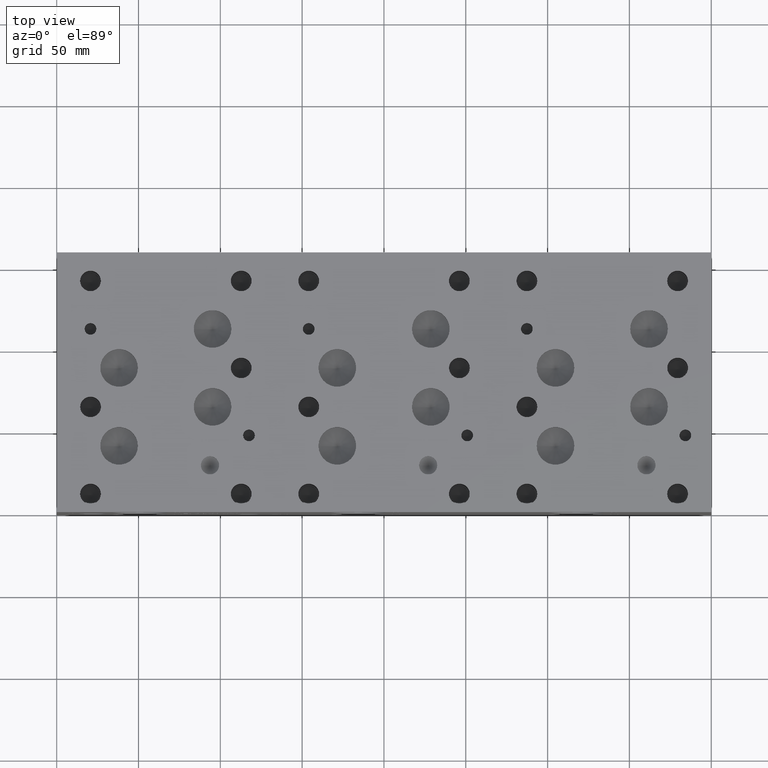
[diagram: clean part render]
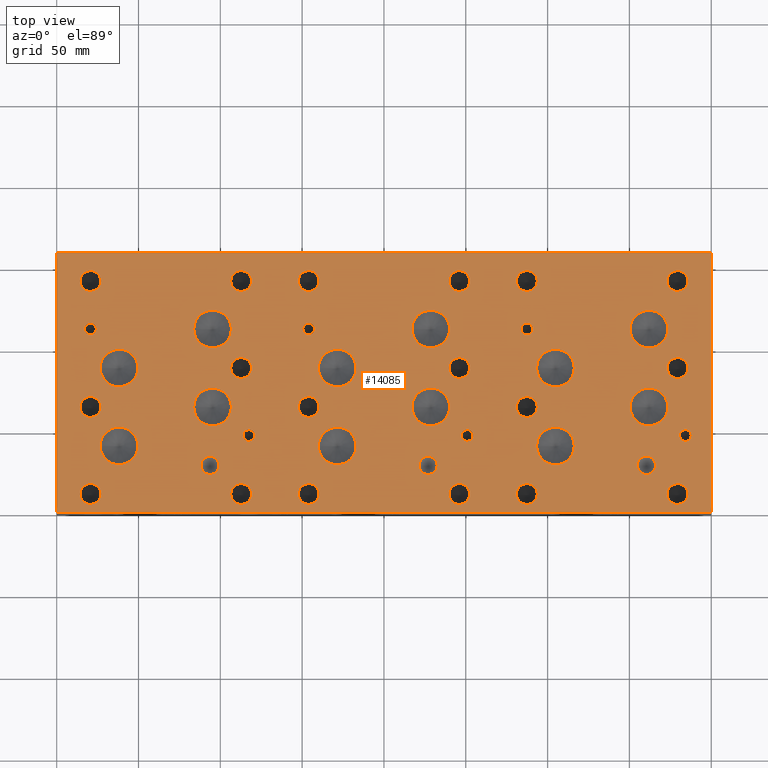
[diagram: same view with one face highlighted and labeled with its STEP entity id]
A machine part, top view. The second image highlights one B-rep face of the part: STEP entity #14085.
In plain terms, the highlighted planar face has unit normal (0, 0, 1).
Its self-contained STEP definition (entity closure, byte-faithful):
#384=CIRCLE('',#14501,5.5626);
#385=CIRCLE('',#14502,5.5626);
#388=CIRCLE('',#14507,5.5626);
#389=CIRCLE('',#14508,5.5626);
#479=CIRCLE('',#14668,5.55625);
#480=CIRCLE('',#14669,5.55625);
#483=CIRCLE('',#14674,11.50874);
#484=CIRCLE('',#14675,11.50874);
#487=CIRCLE('',#14680,11.5062);
#488=CIRCLE('',#14681,11.5062);
#491=CIRCLE('',#14686,11.5062);
#492=CIRCLE('',#14687,11.5062);
#495=CIRCLE('',#14692,11.5062);
#496=CIRCLE('',#14693,11.5062);
#499=CIRCLE('',#14698,11.5062);
#500=CIRCLE('',#14699,11.5062);
#503=CIRCLE('',#14704,11.5062);
#504=CIRCLE('',#14705,11.5062);
#507=CIRCLE('',#14710,11.5062);
#508=CIRCLE('',#14711,11.5062);
#511=CIRCLE('',#14716,11.5062);
#512=CIRCLE('',#14717,11.5062);
#515=CIRCLE('',#14722,11.5062);
#516=CIRCLE('',#14723,11.5062);
#519=CIRCLE('',#14728,11.5062);
#520=CIRCLE('',#14729,11.5062);
#523=CIRCLE('',#14734,11.5062);
#524=CIRCLE('',#14735,11.5062);
#527=CIRCLE('',#14740,11.5062);
#528=CIRCLE('',#14741,11.5062);
#531=CIRCLE('',#14746,3.5687);
#532=CIRCLE('',#14747,3.5687);
#535=CIRCLE('',#14752,3.5687);
#536=CIRCLE('',#14753,3.5687);
#539=CIRCLE('',#14758,3.5687);
#540=CIRCLE('',#14759,3.5687);
#543=CIRCLE('',#14764,3.5687);
#544=CIRCLE('',#14765,3.5687);
#547=CIRCLE('',#14770,3.5687);
#548=CIRCLE('',#14771,3.5687);
#551=CIRCLE('',#14776,3.5687);
#552=CIRCLE('',#14777,3.5687);
#558=CIRCLE('',#14786,6.35);
#559=CIRCLE('',#14787,6.35);
#565=CIRCLE('',#14797,6.35);
#566=CIRCLE('',#14798,6.35);
#572=CIRCLE('',#14808,6.35);
#573=CIRCLE('',#14809,6.35);
#579=CIRCLE('',#14819,6.35);
#580=CIRCLE('',#14820,6.35);
#586=CIRCLE('',#14830,6.35);
#587=CIRCLE('',#14831,6.35);
#593=CIRCLE('',#14841,6.35);
#594=CIRCLE('',#14842,6.35);
#600=CIRCLE('',#14852,6.35);
#601=CIRCLE('',#14853,6.35);
#607=CIRCLE('',#14863,6.35);
#608=CIRCLE('',#14864,6.35);
#614=CIRCLE('',#14874,6.35);
#615=CIRCLE('',#14875,6.35);
#621=CIRCLE('',#14885,6.35);
#622=CIRCLE('',#14886,6.35);
#628=CIRCLE('',#14896,6.35);
#629=CIRCLE('',#14897,6.35);
#635=CIRCLE('',#14907,6.35);
#636=CIRCLE('',#14908,6.35);
#642=CIRCLE('',#14918,6.35);
#643=CIRCLE('',#14919,6.35);
#649=CIRCLE('',#14929,6.35);
#650=CIRCLE('',#14930,6.35);
#656=CIRCLE('',#14940,6.35);
#657=CIRCLE('',#14941,6.35);
#663=CIRCLE('',#14951,6.35);
#664=CIRCLE('',#14952,6.35);
#670=CIRCLE('',#14962,6.35);
#671=CIRCLE('',#14963,6.35);
#677=CIRCLE('',#14973,6.35);
#678=CIRCLE('',#14974,6.35);
#1140=FACE_BOUND('',#2733,.T.);
#1141=FACE_BOUND('',#2734,.T.);
#1142=FACE_BOUND('',#2735,.T.);
#1143=FACE_BOUND('',#2736,.T.);
#1144=FACE_BOUND('',#2737,.T.);
#1145=FACE_BOUND('',#2738,.T.);
#1146=FACE_BOUND('',#2739,.T.);
#1147=FACE_BOUND('',#2740,.T.);
#1148=FACE_BOUND('',#2741,.T.);
#1149=FACE_BOUND('',#2742,.T.);
#1150=FACE_BOUND('',#2743,.T.);
#1151=FACE_BOUND('',#2744,.T.);
#1152=FACE_BOUND('',#2745,.T.);
#1153=FACE_BOUND('',#2746,.T.);
#1154=FACE_BOUND('',#2747,.T.);
#1155=FACE_BOUND('',#2748,.T.);
#1156=FACE_BOUND('',#2749,.T.);
#1157=FACE_BOUND('',#2750,.T.);
#1158=FACE_BOUND('',#2751,.T.);
#1159=FACE_BOUND('',#2752,.T.);
#1160=FACE_BOUND('',#2753,.T.);
#1161=FACE_BOUND('',#2754,.T.);
#1162=FACE_BOUND('',#2755,.T.);
#1163=FACE_BOUND('',#2756,.T.);
#1164=FACE_BOUND('',#2757,.T.);
#1165=FACE_BOUND('',#2758,.T.);
#1166=FACE_BOUND('',#2759,.T.);
#1167=FACE_BOUND('',#2760,.T.);
#1168=FACE_BOUND('',#2761,.T.);
#1169=FACE_BOUND('',#2762,.T.);
#1170=FACE_BOUND('',#2763,.T.);
#1171=FACE_BOUND('',#2764,.T.);
#1172=FACE_BOUND('',#2765,.T.);
#1173=FACE_BOUND('',#2766,.T.);
#1174=FACE_BOUND('',#2767,.T.);
#1175=FACE_BOUND('',#2768,.T.);
#1176=FACE_BOUND('',#2769,.T.);
#1177=FACE_BOUND('',#2770,.T.);
#1178=FACE_BOUND('',#2771,.T.);
#1903=FACE_OUTER_BOUND('',#2732,.T.);
#2732=EDGE_LOOP('',(#12367,#12368,#12369,#12370));
#2733=EDGE_LOOP('',(#12371,#12372));
#2734=EDGE_LOOP('',(#12373,#12374));
#2735=EDGE_LOOP('',(#12375,#12376));
#2736=EDGE_LOOP('',(#12377,#12378));
#2737=EDGE_LOOP('',(#12379,#12380));
#2738=EDGE_LOOP('',(#12381,#12382));
#2739=EDGE_LOOP('',(#12383,#12384));
#2740=EDGE_LOOP('',(#12385,#12386));
#2741=EDGE_LOOP('',(#12387,#12388));
#2742=EDGE_LOOP('',(#12389,#12390));
#2743=EDGE_LOOP('',(#12391,#12392));
#2744=EDGE_LOOP('',(#12393,#12394));
#2745=EDGE_LOOP('',(#12395,#12396));
#2746=EDGE_LOOP('',(#12397,#12398));
#2747=EDGE_LOOP('',(#12399,#12400));
#2748=EDGE_LOOP('',(#12401,#12402));
#2749=EDGE_LOOP('',(#12403,#12404));
#2750=EDGE_LOOP('',(#12405,#12406));
#2751=EDGE_LOOP('',(#12407,#12408));
#2752=EDGE_LOOP('',(#12409,#12410));
#2753=EDGE_LOOP('',(#12411,#12412));
#2754=EDGE_LOOP('',(#12413,#12414));
#2755=EDGE_LOOP('',(#12415,#12416));
#2756=EDGE_LOOP('',(#12417,#12418));
#2757=EDGE_LOOP('',(#12419,#12420));
#2758=EDGE_LOOP('',(#12421,#12422));
#2759=EDGE_LOOP('',(#12423,#12424));
#2760=EDGE_LOOP('',(#12425,#12426));
#2761=EDGE_LOOP('',(#12427,#12428));
#2762=EDGE_LOOP('',(#12429,#12430));
#2763=EDGE_LOOP('',(#12431,#12432));
#2764=EDGE_LOOP('',(#12433,#12434));
#2765=EDGE_LOOP('',(#12435,#12436));
#2766=EDGE_LOOP('',(#12437,#12438));
#2767=EDGE_LOOP('',(#12439,#12440));
#2768=EDGE_LOOP('',(#12441,#12442));
#2769=EDGE_LOOP('',(#12443,#12444));
#2770=EDGE_LOOP('',(#12445,#12446));
#2771=EDGE_LOOP('',(#12447,#12448));
#2808=LINE('',#18070,#4057);
#3701=LINE('',#22626,#4950);
#3759=LINE('',#22897,#5008);
#4021=LINE('',#24344,#5270);
#4057=VECTOR('',#15045,10.);
#4950=VECTOR('',#16526,10.);
#5008=VECTOR('',#16638,10.);
#5270=VECTOR('',#17986,10.);
#5295=VERTEX_POINT('',#18067);
#5296=VERTEX_POINT('',#18069);
#6129=VERTEX_POINT('',#22624);
#6187=VERTEX_POINT('',#22896);
#6282=VERTEX_POINT('',#23370);
#6283=VERTEX_POINT('',#23371);
#6287=VERTEX_POINT('',#23383);
#6288=VERTEX_POINT('',#23384);
#6394=VERTEX_POINT('',#23706);
#6395=VERTEX_POINT('',#23707);
#6399=VERTEX_POINT('',#23719);
#6400=VERTEX_POINT('',#23720);
#6404=VERTEX_POINT('',#23732);
#6405=VERTEX_POINT('',#23733);
#6409=VERTEX_POINT('',#23745);
#6410=VERTEX_POINT('',#23746);
#6414=VERTEX_POINT('',#23758);
#6415=VERTEX_POINT('',#23759);
#6419=VERTEX_POINT('',#23771);
#6420=VERTEX_POINT('',#23772);
#6424=VERTEX_POINT('',#23784);
#6425=VERTEX_POINT('',#23785);
#6429=VERTEX_POINT('',#23797);
#6430=VERTEX_POINT('',#23798);
#6434=VERTEX_POINT('',#23810);
#6435=VERTEX_POINT('',#23811);
#6439=VERTEX_POINT('',#23823);
#6440=VERTEX_POINT('',#23824);
#6444=VERTEX_POINT('',#23836);
#6445=VERTEX_POINT('',#23837);
#6449=VERTEX_POINT('',#23849);
#6450=VERTEX_POINT('',#23850);
#6454=VERTEX_POINT('',#23862);
#6455=VERTEX_POINT('',#23863);
#6459=VERTEX_POINT('',#23875);
#6460=VERTEX_POINT('',#23876);
#6464=VERTEX_POINT('',#23888);
#6465=VERTEX_POINT('',#23889);
#6469=VERTEX_POINT('',#23901);
#6470=VERTEX_POINT('',#23902);
#6474=VERTEX_POINT('',#23914);
#6475=VERTEX_POINT('',#23915);
#6479=VERTEX_POINT('',#23927);
#6480=VERTEX_POINT('',#23928);
#6484=VERTEX_POINT('',#23940);
#6485=VERTEX_POINT('',#23941);
#6492=VERTEX_POINT('',#23960);
#6493=VERTEX_POINT('',#23961);
#6500=VERTEX_POINT('',#23982);
#6501=VERTEX_POINT('',#23983);
#6508=VERTEX_POINT('',#24004);
#6509=VERTEX_POINT('',#24005);
#6516=VERTEX_POINT('',#24026);
#6517=VERTEX_POINT('',#24027);
#6524=VERTEX_POINT('',#24048);
#6525=VERTEX_POINT('',#24049);
#6532=VERTEX_POINT('',#24070);
#6533=VERTEX_POINT('',#24071);
#6540=VERTEX_POINT('',#24092);
#6541=VERTEX_POINT('',#24093);
#6548=VERTEX_POINT('',#24114);
#6549=VERTEX_POINT('',#24115);
#6556=VERTEX_POINT('',#24136);
#6557=VERTEX_POINT('',#24137);
#6564=VERTEX_POINT('',#24158);
#6565=VERTEX_POINT('',#24159);
#6572=VERTEX_POINT('',#24180);
#6573=VERTEX_POINT('',#24181);
#6580=VERTEX_POINT('',#24202);
#6581=VERTEX_POINT('',#24203);
#6588=VERTEX_POINT('',#24224);
#6589=VERTEX_POINT('',#24225);
#6596=VERTEX_POINT('',#24246);
#6597=VERTEX_POINT('',#24247);
#6604=VERTEX_POINT('',#24268);
#6605=VERTEX_POINT('',#24269);
#6612=VERTEX_POINT('',#24290);
#6613=VERTEX_POINT('',#24291);
#6620=VERTEX_POINT('',#24312);
#6621=VERTEX_POINT('',#24313);
#6628=VERTEX_POINT('',#24334);
#6629=VERTEX_POINT('',#24335);
#6665=EDGE_CURVE('',#5296,#5295,#2808,.T.);
#7894=EDGE_CURVE('',#5295,#6129,#3701,.T.);
#7976=EDGE_CURVE('',#6187,#5296,#3759,.T.);
#8126=EDGE_CURVE('',#6282,#6283,#384,.T.);
#8127=EDGE_CURVE('',#6283,#6282,#385,.T.);
#8132=EDGE_CURVE('',#6287,#6288,#388,.T.);
#8133=EDGE_CURVE('',#6288,#6287,#389,.T.);
#8278=EDGE_CURVE('',#6394,#6395,#479,.T.);
#8279=EDGE_CURVE('',#6395,#6394,#480,.T.);
#8284=EDGE_CURVE('',#6399,#6400,#483,.T.);
#8285=EDGE_CURVE('',#6400,#6399,#484,.T.);
#8290=EDGE_CURVE('',#6404,#6405,#487,.T.);
#8291=EDGE_CURVE('',#6405,#6404,#488,.T.);
#8296=EDGE_CURVE('',#6409,#6410,#491,.T.);
#8297=EDGE_CURVE('',#6410,#6409,#492,.T.);
#8302=EDGE_CURVE('',#6414,#6415,#495,.T.);
#8303=EDGE_CURVE('',#6415,#6414,#496,.T.);
#8308=EDGE_CURVE('',#6419,#6420,#499,.T.);
#8309=EDGE_CURVE('',#6420,#6419,#500,.T.);
#8314=EDGE_CURVE('',#6424,#6425,#503,.T.);
#8315=EDGE_CURVE('',#6425,#6424,#504,.T.);
#8320=EDGE_CURVE('',#6429,#6430,#507,.T.);
#8321=EDGE_CURVE('',#6430,#6429,#508,.T.);
#8326=EDGE_CURVE('',#6434,#6435,#511,.T.);
#8327=EDGE_CURVE('',#6435,#6434,#512,.T.);
#8332=EDGE_CURVE('',#6439,#6440,#515,.T.);
#8333=EDGE_CURVE('',#6440,#6439,#516,.T.);
#8338=EDGE_CURVE('',#6444,#6445,#519,.T.);
#8339=EDGE_CURVE('',#6445,#6444,#520,.T.);
#8344=EDGE_CURVE('',#6449,#6450,#523,.T.);
#8345=EDGE_CURVE('',#6450,#6449,#524,.T.);
#8350=EDGE_CURVE('',#6454,#6455,#527,.T.);
#8351=EDGE_CURVE('',#6455,#6454,#528,.T.);
#8356=EDGE_CURVE('',#6459,#6460,#531,.T.);
#8357=EDGE_CURVE('',#6460,#6459,#532,.T.);
#8362=EDGE_CURVE('',#6464,#6465,#535,.T.);
#8363=EDGE_CURVE('',#6465,#6464,#536,.T.);
#8368=EDGE_CURVE('',#6469,#6470,#539,.T.);
#8369=EDGE_CURVE('',#6470,#6469,#540,.T.);
#8374=EDGE_CURVE('',#6474,#6475,#543,.T.);
#8375=EDGE_CURVE('',#6475,#6474,#544,.T.);
#8380=EDGE_CURVE('',#6479,#6480,#547,.T.);
#8381=EDGE_CURVE('',#6480,#6479,#548,.T.);
#8386=EDGE_CURVE('',#6484,#6485,#551,.T.);
#8387=EDGE_CURVE('',#6485,#6484,#552,.T.);
#8395=EDGE_CURVE('',#6492,#6493,#558,.T.);
#8396=EDGE_CURVE('',#6493,#6492,#559,.T.);
#8405=EDGE_CURVE('',#6500,#6501,#565,.T.);
#8406=EDGE_CURVE('',#6501,#6500,#566,.T.);
#8415=EDGE_CURVE('',#6508,#6509,#572,.T.);
#8416=EDGE_CURVE('',#6509,#6508,#573,.T.);
#8425=EDGE_CURVE('',#6516,#6517,#579,.T.);
#8426=EDGE_CURVE('',#6517,#6516,#580,.T.);
#8435=EDGE_CURVE('',#6524,#6525,#586,.T.);
#8436=EDGE_CURVE('',#6525,#6524,#587,.T.);
#8445=EDGE_CURVE('',#6532,#6533,#593,.T.);
#8446=EDGE_CURVE('',#6533,#6532,#594,.T.);
#8455=EDGE_CURVE('',#6540,#6541,#600,.T.);
#8456=EDGE_CURVE('',#6541,#6540,#601,.T.);
#8465=EDGE_CURVE('',#6548,#6549,#607,.T.);
#8466=EDGE_CURVE('',#6549,#6548,#608,.T.);
#8475=EDGE_CURVE('',#6556,#6557,#614,.T.);
#8476=EDGE_CURVE('',#6557,#6556,#615,.T.);
#8485=EDGE_CURVE('',#6564,#6565,#621,.T.);
#8486=EDGE_CURVE('',#6565,#6564,#622,.T.);
#8495=EDGE_CURVE('',#6572,#6573,#628,.T.);
#8496=EDGE_CURVE('',#6573,#6572,#629,.T.);
#8505=EDGE_CURVE('',#6580,#6581,#635,.T.);
#8506=EDGE_CURVE('',#6581,#6580,#636,.T.);
#8515=EDGE_CURVE('',#6588,#6589,#642,.T.);
#8516=EDGE_CURVE('',#6589,#6588,#643,.T.);
#8525=EDGE_CURVE('',#6596,#6597,#649,.T.);
#8526=EDGE_CURVE('',#6597,#6596,#650,.T.);
#8535=EDGE_CURVE('',#6604,#6605,#656,.T.);
#8536=EDGE_CURVE('',#6605,#6604,#657,.T.);
#8545=EDGE_CURVE('',#6612,#6613,#663,.T.);
#8546=EDGE_CURVE('',#6613,#6612,#664,.T.);
#8555=EDGE_CURVE('',#6620,#6621,#670,.T.);
#8556=EDGE_CURVE('',#6621,#6620,#671,.T.);
#8565=EDGE_CURVE('',#6628,#6629,#677,.T.);
#8566=EDGE_CURVE('',#6629,#6628,#678,.T.);
#8570=EDGE_CURVE('',#6129,#6187,#4021,.T.);
#12367=ORIENTED_EDGE('',*,*,#6665,.T.);
#12368=ORIENTED_EDGE('',*,*,#7894,.T.);
#12369=ORIENTED_EDGE('',*,*,#8570,.T.);
#12370=ORIENTED_EDGE('',*,*,#7976,.T.);
#12371=ORIENTED_EDGE('',*,*,#8126,.T.);
#12372=ORIENTED_EDGE('',*,*,#8127,.T.);
#12373=ORIENTED_EDGE('',*,*,#8132,.T.);
#12374=ORIENTED_EDGE('',*,*,#8133,.T.);
#12375=ORIENTED_EDGE('',*,*,#8278,.T.);
#12376=ORIENTED_EDGE('',*,*,#8279,.T.);
#12377=ORIENTED_EDGE('',*,*,#8284,.T.);
#12378=ORIENTED_EDGE('',*,*,#8285,.T.);
#12379=ORIENTED_EDGE('',*,*,#8290,.T.);
#12380=ORIENTED_EDGE('',*,*,#8291,.T.);
#12381=ORIENTED_EDGE('',*,*,#8296,.T.);
#12382=ORIENTED_EDGE('',*,*,#8297,.T.);
#12383=ORIENTED_EDGE('',*,*,#8302,.T.);
#12384=ORIENTED_EDGE('',*,*,#8303,.T.);
#12385=ORIENTED_EDGE('',*,*,#8308,.T.);
#12386=ORIENTED_EDGE('',*,*,#8309,.T.);
#12387=ORIENTED_EDGE('',*,*,#8314,.T.);
#12388=ORIENTED_EDGE('',*,*,#8315,.T.);
#12389=ORIENTED_EDGE('',*,*,#8320,.T.);
#12390=ORIENTED_EDGE('',*,*,#8321,.T.);
#12391=ORIENTED_EDGE('',*,*,#8326,.T.);
#12392=ORIENTED_EDGE('',*,*,#8327,.T.);
#12393=ORIENTED_EDGE('',*,*,#8332,.T.);
#12394=ORIENTED_EDGE('',*,*,#8333,.T.);
#12395=ORIENTED_EDGE('',*,*,#8338,.T.);
#12396=ORIENTED_EDGE('',*,*,#8339,.T.);
#12397=ORIENTED_EDGE('',*,*,#8344,.T.);
#12398=ORIENTED_EDGE('',*,*,#8345,.T.);
#12399=ORIENTED_EDGE('',*,*,#8350,.T.);
#12400=ORIENTED_EDGE('',*,*,#8351,.T.);
#12401=ORIENTED_EDGE('',*,*,#8356,.T.);
#12402=ORIENTED_EDGE('',*,*,#8357,.T.);
#12403=ORIENTED_EDGE('',*,*,#8362,.T.);
#12404=ORIENTED_EDGE('',*,*,#8363,.T.);
#12405=ORIENTED_EDGE('',*,*,#8368,.T.);
#12406=ORIENTED_EDGE('',*,*,#8369,.T.);
#12407=ORIENTED_EDGE('',*,*,#8374,.T.);
#12408=ORIENTED_EDGE('',*,*,#8375,.T.);
#12409=ORIENTED_EDGE('',*,*,#8380,.T.);
#12410=ORIENTED_EDGE('',*,*,#8381,.T.);
#12411=ORIENTED_EDGE('',*,*,#8386,.T.);
#12412=ORIENTED_EDGE('',*,*,#8387,.T.);
#12413=ORIENTED_EDGE('',*,*,#8395,.T.);
#12414=ORIENTED_EDGE('',*,*,#8396,.T.);
#12415=ORIENTED_EDGE('',*,*,#8405,.T.);
#12416=ORIENTED_EDGE('',*,*,#8406,.T.);
#12417=ORIENTED_EDGE('',*,*,#8415,.T.);
#12418=ORIENTED_EDGE('',*,*,#8416,.T.);
#12419=ORIENTED_EDGE('',*,*,#8425,.T.);
#12420=ORIENTED_EDGE('',*,*,#8426,.T.);
#12421=ORIENTED_EDGE('',*,*,#8435,.T.);
#12422=ORIENTED_EDGE('',*,*,#8436,.T.);
#12423=ORIENTED_EDGE('',*,*,#8445,.T.);
#12424=ORIENTED_EDGE('',*,*,#8446,.T.);
#12425=ORIENTED_EDGE('',*,*,#8455,.T.);
#12426=ORIENTED_EDGE('',*,*,#8456,.T.);
#12427=ORIENTED_EDGE('',*,*,#8465,.T.);
#12428=ORIENTED_EDGE('',*,*,#8466,.T.);
#12429=ORIENTED_EDGE('',*,*,#8475,.T.);
#12430=ORIENTED_EDGE('',*,*,#8476,.T.);
#12431=ORIENTED_EDGE('',*,*,#8485,.T.);
#12432=ORIENTED_EDGE('',*,*,#8486,.T.);
#12433=ORIENTED_EDGE('',*,*,#8495,.T.);
#12434=ORIENTED_EDGE('',*,*,#8496,.T.);
#12435=ORIENTED_EDGE('',*,*,#8505,.T.);
#12436=ORIENTED_EDGE('',*,*,#8506,.T.);
#12437=ORIENTED_EDGE('',*,*,#8515,.T.);
#12438=ORIENTED_EDGE('',*,*,#8516,.T.);
#12439=ORIENTED_EDGE('',*,*,#8525,.T.);
#12440=ORIENTED_EDGE('',*,*,#8526,.T.);
#12441=ORIENTED_EDGE('',*,*,#8535,.T.);
#12442=ORIENTED_EDGE('',*,*,#8536,.T.);
#12443=ORIENTED_EDGE('',*,*,#8545,.T.);
#12444=ORIENTED_EDGE('',*,*,#8546,.T.);
#12445=ORIENTED_EDGE('',*,*,#8555,.T.);
#12446=ORIENTED_EDGE('',*,*,#8556,.T.);
#12447=ORIENTED_EDGE('',*,*,#8565,.T.);
#12448=ORIENTED_EDGE('',*,*,#8566,.T.);
#12846=PLANE('',#14980);
#14085=ADVANCED_FACE('',(#1903,#1140,#1141,#1142,#1143,#1144,#1145,#1146,
#1147,#1148,#1149,#1150,#1151,#1152,#1153,#1154,#1155,#1156,#1157,#1158,
#1159,#1160,#1161,#1162,#1163,#1164,#1165,#1166,#1167,#1168,#1169,#1170,
#1171,#1172,#1173,#1174,#1175,#1176,#1177,#1178),#12846,.T.);
#14501=AXIS2_PLACEMENT_3D('',#23372,#16883,#16884);
#14502=AXIS2_PLACEMENT_3D('',#23373,#16885,#16886);
#14507=AXIS2_PLACEMENT_3D('',#23385,#16897,#16898);
#14508=AXIS2_PLACEMENT_3D('',#23386,#16899,#16900);
#14668=AXIS2_PLACEMENT_3D('',#23708,#17274,#17275);
#14669=AXIS2_PLACEMENT_3D('',#23709,#17276,#17277);
#14674=AXIS2_PLACEMENT_3D('',#23721,#17288,#17289);
#14675=AXIS2_PLACEMENT_3D('',#23722,#17290,#17291);
#14680=AXIS2_PLACEMENT_3D('',#23734,#17302,#17303);
#14681=AXIS2_PLACEMENT_3D('',#23735,#17304,#17305);
#14686=AXIS2_PLACEMENT_3D('',#23747,#17316,#17317);
#14687=AXIS2_PLACEMENT_3D('',#23748,#17318,#17319);
#14692=AXIS2_PLACEMENT_3D('',#23760,#17330,#17331);
#14693=AXIS2_PLACEMENT_3D('',#23761,#17332,#17333);
#14698=AXIS2_PLACEMENT_3D('',#23773,#17344,#17345);
#14699=AXIS2_PLACEMENT_3D('',#23774,#17346,#17347);
#14704=AXIS2_PLACEMENT_3D('',#23786,#17358,#17359);
#14705=AXIS2_PLACEMENT_3D('',#23787,#17360,#17361);
#14710=AXIS2_PLACEMENT_3D('',#23799,#17372,#17373);
#14711=AXIS2_PLACEMENT_3D('',#23800,#17374,#17375);
#14716=AXIS2_PLACEMENT_3D('',#23812,#17386,#17387);
#14717=AXIS2_PLACEMENT_3D('',#23813,#17388,#17389);
#14722=AXIS2_PLACEMENT_3D('',#23825,#17400,#17401);
#14723=AXIS2_PLACEMENT_3D('',#23826,#17402,#17403);
#14728=AXIS2_PLACEMENT_3D('',#23838,#17414,#17415);
#14729=AXIS2_PLACEMENT_3D('',#23839,#17416,#17417);
#14734=AXIS2_PLACEMENT_3D('',#23851,#17428,#17429);
#14735=AXIS2_PLACEMENT_3D('',#23852,#17430,#17431);
#14740=AXIS2_PLACEMENT_3D('',#23864,#17442,#17443);
#14741=AXIS2_PLACEMENT_3D('',#23865,#17444,#17445);
#14746=AXIS2_PLACEMENT_3D('',#23877,#17456,#17457);
#14747=AXIS2_PLACEMENT_3D('',#23878,#17458,#17459);
#14752=AXIS2_PLACEMENT_3D('',#23890,#17470,#17471);
#14753=AXIS2_PLACEMENT_3D('',#23891,#17472,#17473);
#14758=AXIS2_PLACEMENT_3D('',#23903,#17484,#17485);
#14759=AXIS2_PLACEMENT_3D('',#23904,#17486,#17487);
#14764=AXIS2_PLACEMENT_3D('',#23916,#17498,#17499);
#14765=AXIS2_PLACEMENT_3D('',#23917,#17500,#17501);
#14770=AXIS2_PLACEMENT_3D('',#23929,#17512,#17513);
#14771=AXIS2_PLACEMENT_3D('',#23930,#17514,#17515);
#14776=AXIS2_PLACEMENT_3D('',#23942,#17526,#17527);
#14777=AXIS2_PLACEMENT_3D('',#23943,#17528,#17529);
#14786=AXIS2_PLACEMENT_3D('',#23962,#17548,#17549);
#14787=AXIS2_PLACEMENT_3D('',#23963,#17550,#17551);
#14797=AXIS2_PLACEMENT_3D('',#23984,#17573,#17574);
#14798=AXIS2_PLACEMENT_3D('',#23985,#17575,#17576);
#14808=AXIS2_PLACEMENT_3D('',#24006,#17598,#17599);
#14809=AXIS2_PLACEMENT_3D('',#24007,#17600,#17601);
#14819=AXIS2_PLACEMENT_3D('',#24028,#17623,#17624);
#14820=AXIS2_PLACEMENT_3D('',#24029,#17625,#17626);
#14830=AXIS2_PLACEMENT_3D('',#24050,#17648,#17649);
#14831=AXIS2_PLACEMENT_3D('',#24051,#17650,#17651);
#14841=AXIS2_PLACEMENT_3D('',#24072,#17673,#17674);
#14842=AXIS2_PLACEMENT_3D('',#24073,#17675,#17676);
#14852=AXIS2_PLACEMENT_3D('',#24094,#17698,#17699);
#14853=AXIS2_PLACEMENT_3D('',#24095,#17700,#17701);
#14863=AXIS2_PLACEMENT_3D('',#24116,#17723,#17724);
#14864=AXIS2_PLACEMENT_3D('',#24117,#17725,#17726);
#14874=AXIS2_PLACEMENT_3D('',#24138,#17748,#17749);
#14875=AXIS2_PLACEMENT_3D('',#24139,#17750,#17751);
#14885=AXIS2_PLACEMENT_3D('',#24160,#17773,#17774);
#14886=AXIS2_PLACEMENT_3D('',#24161,#17775,#17776);
#14896=AXIS2_PLACEMENT_3D('',#24182,#17798,#17799);
#14897=AXIS2_PLACEMENT_3D('',#24183,#17800,#17801);
#14907=AXIS2_PLACEMENT_3D('',#24204,#17823,#17824);
#14908=AXIS2_PLACEMENT_3D('',#24205,#17825,#17826);
#14918=AXIS2_PLACEMENT_3D('',#24226,#17848,#17849);
#14919=AXIS2_PLACEMENT_3D('',#24227,#17850,#17851);
#14929=AXIS2_PLACEMENT_3D('',#24248,#17873,#17874);
#14930=AXIS2_PLACEMENT_3D('',#24249,#17875,#17876);
#14940=AXIS2_PLACEMENT_3D('',#24270,#17898,#17899);
#14941=AXIS2_PLACEMENT_3D('',#24271,#17900,#17901);
#14951=AXIS2_PLACEMENT_3D('',#24292,#17923,#17924);
#14952=AXIS2_PLACEMENT_3D('',#24293,#17925,#17926);
#14962=AXIS2_PLACEMENT_3D('',#24314,#17948,#17949);
#14963=AXIS2_PLACEMENT_3D('',#24315,#17950,#17951);
#14973=AXIS2_PLACEMENT_3D('',#24336,#17973,#17974);
#14974=AXIS2_PLACEMENT_3D('',#24337,#17975,#17976);
#14980=AXIS2_PLACEMENT_3D('',#24347,#17991,#17992);
#15045=DIRECTION('',(1.,0.,0.));
#16526=DIRECTION('',(0.,1.,0.));
#16638=DIRECTION('',(0.,-1.,0.));
#16883=DIRECTION('center_axis',(0.,0.,-1.));
#16884=DIRECTION('ref_axis',(1.,0.,0.));
#16885=DIRECTION('center_axis',(0.,0.,-1.));
#16886=DIRECTION('ref_axis',(1.,0.,0.));
#16897=DIRECTION('center_axis',(0.,0.,-1.));
#16898=DIRECTION('ref_axis',(1.,0.,0.));
#16899=DIRECTION('center_axis',(0.,0.,-1.));
#16900=DIRECTION('ref_axis',(1.,0.,0.));
#17274=DIRECTION('center_axis',(0.,0.,-1.));
#17275=DIRECTION('ref_axis',(1.,0.,0.));
#17276=DIRECTION('center_axis',(0.,0.,-1.));
#17277=DIRECTION('ref_axis',(1.,0.,0.));
#17288=DIRECTION('center_axis',(0.,0.,-1.));
#17289=DIRECTION('ref_axis',(1.,0.,0.));
#17290=DIRECTION('center_axis',(0.,0.,-1.));
#17291=DIRECTION('ref_axis',(1.,0.,0.));
#17302=DIRECTION('center_axis',(0.,0.,-1.));
#17303=DIRECTION('ref_axis',(1.,0.,0.));
#17304=DIRECTION('center_axis',(0.,0.,-1.));
#17305=DIRECTION('ref_axis',(1.,0.,0.));
#17316=DIRECTION('center_axis',(0.,0.,-1.));
#17317=DIRECTION('ref_axis',(1.,0.,0.));
#17318=DIRECTION('center_axis',(0.,0.,-1.));
#17319=DIRECTION('ref_axis',(1.,0.,0.));
#17330=DIRECTION('center_axis',(0.,0.,-1.));
#17331=DIRECTION('ref_axis',(1.,0.,0.));
#17332=DIRECTION('center_axis',(0.,0.,-1.));
#17333=DIRECTION('ref_axis',(1.,0.,0.));
#17344=DIRECTION('center_axis',(0.,0.,-1.));
#17345=DIRECTION('ref_axis',(1.,0.,0.));
#17346=DIRECTION('center_axis',(0.,0.,-1.));
#17347=DIRECTION('ref_axis',(1.,0.,0.));
#17358=DIRECTION('center_axis',(0.,0.,-1.));
#17359=DIRECTION('ref_axis',(1.,0.,0.));
#17360=DIRECTION('center_axis',(0.,0.,-1.));
#17361=DIRECTION('ref_axis',(1.,0.,0.));
#17372=DIRECTION('center_axis',(0.,0.,-1.));
#17373=DIRECTION('ref_axis',(1.,0.,0.));
#17374=DIRECTION('center_axis',(0.,0.,-1.));
#17375=DIRECTION('ref_axis',(1.,0.,0.));
#17386=DIRECTION('center_axis',(0.,0.,-1.));
#17387=DIRECTION('ref_axis',(1.,0.,0.));
#17388=DIRECTION('center_axis',(0.,0.,-1.));
#17389=DIRECTION('ref_axis',(1.,0.,0.));
#17400=DIRECTION('center_axis',(0.,0.,-1.));
#17401=DIRECTION('ref_axis',(1.,0.,0.));
#17402=DIRECTION('center_axis',(0.,0.,-1.));
#17403=DIRECTION('ref_axis',(1.,0.,0.));
#17414=DIRECTION('center_axis',(0.,0.,-1.));
#17415=DIRECTION('ref_axis',(1.,0.,0.));
#17416=DIRECTION('center_axis',(0.,0.,-1.));
#17417=DIRECTION('ref_axis',(1.,0.,0.));
#17428=DIRECTION('center_axis',(0.,0.,-1.));
#17429=DIRECTION('ref_axis',(1.,0.,0.));
#17430=DIRECTION('center_axis',(0.,0.,-1.));
#17431=DIRECTION('ref_axis',(1.,0.,0.));
#17442=DIRECTION('center_axis',(0.,0.,-1.));
#17443=DIRECTION('ref_axis',(1.,0.,0.));
#17444=DIRECTION('center_axis',(0.,0.,-1.));
#17445=DIRECTION('ref_axis',(1.,0.,0.));
#17456=DIRECTION('center_axis',(0.,0.,-1.));
#17457=DIRECTION('ref_axis',(1.,0.,0.));
#17458=DIRECTION('center_axis',(0.,0.,-1.));
#17459=DIRECTION('ref_axis',(1.,0.,0.));
#17470=DIRECTION('center_axis',(0.,0.,-1.));
#17471=DIRECTION('ref_axis',(1.,0.,0.));
#17472=DIRECTION('center_axis',(0.,0.,-1.));
#17473=DIRECTION('ref_axis',(1.,0.,0.));
#17484=DIRECTION('center_axis',(0.,0.,-1.));
#17485=DIRECTION('ref_axis',(1.,0.,0.));
#17486=DIRECTION('center_axis',(0.,0.,-1.));
#17487=DIRECTION('ref_axis',(1.,0.,0.));
#17498=DIRECTION('center_axis',(0.,0.,-1.));
#17499=DIRECTION('ref_axis',(1.,0.,0.));
#17500=DIRECTION('center_axis',(0.,0.,-1.));
#17501=DIRECTION('ref_axis',(1.,0.,0.));
#17512=DIRECTION('center_axis',(0.,0.,-1.));
#17513=DIRECTION('ref_axis',(1.,0.,0.));
#17514=DIRECTION('center_axis',(0.,0.,-1.));
#17515=DIRECTION('ref_axis',(1.,0.,0.));
#17526=DIRECTION('center_axis',(0.,0.,-1.));
#17527=DIRECTION('ref_axis',(1.,0.,0.));
#17528=DIRECTION('center_axis',(0.,0.,-1.));
#17529=DIRECTION('ref_axis',(1.,0.,0.));
#17548=DIRECTION('center_axis',(0.,0.,-1.));
#17549=DIRECTION('ref_axis',(1.,0.,0.));
#17550=DIRECTION('center_axis',(0.,0.,-1.));
#17551=DIRECTION('ref_axis',(1.,0.,0.));
#17573=DIRECTION('center_axis',(0.,0.,-1.));
#17574=DIRECTION('ref_axis',(1.,0.,0.));
#17575=DIRECTION('center_axis',(0.,0.,-1.));
#17576=DIRECTION('ref_axis',(1.,0.,0.));
#17598=DIRECTION('center_axis',(0.,0.,-1.));
#17599=DIRECTION('ref_axis',(1.,0.,0.));
#17600=DIRECTION('center_axis',(0.,0.,-1.));
#17601=DIRECTION('ref_axis',(1.,0.,0.));
#17623=DIRECTION('center_axis',(0.,0.,-1.));
#17624=DIRECTION('ref_axis',(1.,0.,0.));
#17625=DIRECTION('center_axis',(0.,0.,-1.));
#17626=DIRECTION('ref_axis',(1.,0.,0.));
#17648=DIRECTION('center_axis',(0.,0.,-1.));
#17649=DIRECTION('ref_axis',(1.,0.,0.));
#17650=DIRECTION('center_axis',(0.,0.,-1.));
#17651=DIRECTION('ref_axis',(1.,0.,0.));
#17673=DIRECTION('center_axis',(0.,0.,-1.));
#17674=DIRECTION('ref_axis',(1.,0.,0.));
#17675=DIRECTION('center_axis',(0.,0.,-1.));
#17676=DIRECTION('ref_axis',(1.,0.,0.));
#17698=DIRECTION('center_axis',(0.,0.,-1.));
#17699=DIRECTION('ref_axis',(1.,0.,0.));
#17700=DIRECTION('center_axis',(0.,0.,-1.));
#17701=DIRECTION('ref_axis',(1.,0.,0.));
#17723=DIRECTION('center_axis',(0.,0.,-1.));
#17724=DIRECTION('ref_axis',(1.,0.,0.));
#17725=DIRECTION('center_axis',(0.,0.,-1.));
#17726=DIRECTION('ref_axis',(1.,0.,0.));
#17748=DIRECTION('center_axis',(0.,0.,-1.));
#17749=DIRECTION('ref_axis',(1.,0.,0.));
#17750=DIRECTION('center_axis',(0.,0.,-1.));
#17751=DIRECTION('ref_axis',(1.,0.,0.));
#17773=DIRECTION('center_axis',(0.,0.,-1.));
#17774=DIRECTION('ref_axis',(1.,0.,0.));
#17775=DIRECTION('center_axis',(0.,0.,-1.));
#17776=DIRECTION('ref_axis',(1.,0.,0.));
#17798=DIRECTION('center_axis',(0.,0.,-1.));
#17799=DIRECTION('ref_axis',(1.,0.,0.));
#17800=DIRECTION('center_axis',(0.,0.,-1.));
#17801=DIRECTION('ref_axis',(1.,0.,0.));
#17823=DIRECTION('center_axis',(0.,0.,-1.));
#17824=DIRECTION('ref_axis',(1.,0.,0.));
#17825=DIRECTION('center_axis',(0.,0.,-1.));
#17826=DIRECTION('ref_axis',(1.,0.,0.));
#17848=DIRECTION('center_axis',(0.,0.,-1.));
#17849=DIRECTION('ref_axis',(1.,0.,0.));
#17850=DIRECTION('center_axis',(0.,0.,-1.));
#17851=DIRECTION('ref_axis',(1.,0.,0.));
#17873=DIRECTION('center_axis',(0.,0.,-1.));
#17874=DIRECTION('ref_axis',(1.,0.,0.));
#17875=DIRECTION('center_axis',(0.,0.,-1.));
#17876=DIRECTION('ref_axis',(1.,0.,0.));
#17898=DIRECTION('center_axis',(0.,0.,-1.));
#17899=DIRECTION('ref_axis',(1.,0.,0.));
#17900=DIRECTION('center_axis',(0.,0.,-1.));
#17901=DIRECTION('ref_axis',(1.,0.,0.));
#17923=DIRECTION('center_axis',(0.,0.,-1.));
#17924=DIRECTION('ref_axis',(1.,0.,0.));
#17925=DIRECTION('center_axis',(0.,0.,-1.));
#17926=DIRECTION('ref_axis',(1.,0.,0.));
#17948=DIRECTION('center_axis',(0.,0.,-1.));
#17949=DIRECTION('ref_axis',(1.,0.,0.));
#17950=DIRECTION('center_axis',(0.,0.,-1.));
#17951=DIRECTION('ref_axis',(1.,0.,0.));
#17973=DIRECTION('center_axis',(0.,0.,-1.));
#17974=DIRECTION('ref_axis',(1.,0.,0.));
#17975=DIRECTION('center_axis',(0.,0.,-1.));
#17976=DIRECTION('ref_axis',(1.,0.,0.));
#17986=DIRECTION('',(-1.,0.,0.));
#17991=DIRECTION('center_axis',(0.,0.,1.));
#17992=DIRECTION('ref_axis',(1.,0.,0.));
#18067=CARTESIAN_POINT('',(400.05,0.,120.65));
#18069=CARTESIAN_POINT('',(0.,0.,120.65));
#18070=CARTESIAN_POINT('',(0.,0.,120.65));
#22624=CARTESIAN_POINT('',(400.05,158.75,120.65));
#22626=CARTESIAN_POINT('',(400.05,0.,120.65));
#22896=CARTESIAN_POINT('',(0.,158.75,120.65));
#22897=CARTESIAN_POINT('',(0.,158.75,120.65));
#23370=CARTESIAN_POINT('',(232.5624,28.575,120.65));
#23371=CARTESIAN_POINT('',(221.4372,28.575,120.65));
#23372=CARTESIAN_POINT('Origin',(226.9998,28.575,120.65));
#23373=CARTESIAN_POINT('Origin',(226.9998,28.575,120.65));
#23383=CARTESIAN_POINT('',(365.9124,28.575,120.65));
#23384=CARTESIAN_POINT('',(354.7872,28.575,120.65));
#23385=CARTESIAN_POINT('Origin',(360.3498,28.575,120.65));
#23386=CARTESIAN_POINT('Origin',(360.3498,28.575,120.65));
#23706=CARTESIAN_POINT('',(99.21875,28.56992,120.65));
#23707=CARTESIAN_POINT('',(88.10625,28.56992,120.65));
#23708=CARTESIAN_POINT('Origin',(93.6625,28.56992,120.65));
#23709=CARTESIAN_POINT('Origin',(93.6625,28.56992,120.65));
#23719=CARTESIAN_POINT('',(106.75874,111.9124,120.65));
#23720=CARTESIAN_POINT('',(83.74126,111.9124,120.65));
#23721=CARTESIAN_POINT('Origin',(95.25,111.9124,120.65));
#23722=CARTESIAN_POINT('Origin',(95.25,111.9124,120.65));
#23732=CARTESIAN_POINT('',(316.3062,88.1126,120.65));
#23733=CARTESIAN_POINT('',(293.2938,88.1126,120.65));
#23734=CARTESIAN_POINT('Origin',(304.8,88.1126,120.65));
#23735=CARTESIAN_POINT('Origin',(304.8,88.1126,120.65));
#23745=CARTESIAN_POINT('',(373.4562,64.2874,120.65));
#23746=CARTESIAN_POINT('',(350.4438,64.2874,120.65));
#23747=CARTESIAN_POINT('Origin',(361.95,64.2874,120.65));
#23748=CARTESIAN_POINT('Origin',(361.95,64.2874,120.65));
#23758=CARTESIAN_POINT('',(182.9562,88.1126,120.65));
#23759=CARTESIAN_POINT('',(159.9438,88.1126,120.65));
#23760=CARTESIAN_POINT('Origin',(171.45,88.1126,120.65));
#23761=CARTESIAN_POINT('Origin',(171.45,88.1126,120.65));
#23771=CARTESIAN_POINT('',(240.1062,64.2874,120.65));
#23772=CARTESIAN_POINT('',(217.0938,64.2874,120.65));
#23773=CARTESIAN_POINT('Origin',(228.6,64.2874,120.65));
#23774=CARTESIAN_POINT('Origin',(228.6,64.2874,120.65));
#23784=CARTESIAN_POINT('',(49.6062,88.1126,120.65));
#23785=CARTESIAN_POINT('',(26.5938,88.1126,120.65));
#23786=CARTESIAN_POINT('Origin',(38.1,88.1126,120.65));
#23787=CARTESIAN_POINT('Origin',(38.1,88.1126,120.65));
#23797=CARTESIAN_POINT('',(106.7562,64.2874,120.65));
#23798=CARTESIAN_POINT('',(83.7438,64.2874,120.65));
#23799=CARTESIAN_POINT('Origin',(95.25,64.2874,120.65));
#23800=CARTESIAN_POINT('Origin',(95.25,64.2874,120.65));
#23810=CARTESIAN_POINT('',(49.6062,40.4622,120.65));
#23811=CARTESIAN_POINT('',(26.5938,40.4622,120.65));
#23812=CARTESIAN_POINT('Origin',(38.1,40.4622,120.65));
#23813=CARTESIAN_POINT('Origin',(38.1,40.4622,120.65));
#23823=CARTESIAN_POINT('',(240.1062,111.9124,120.65));
#23824=CARTESIAN_POINT('',(217.0938,111.9124,120.65));
#23825=CARTESIAN_POINT('Origin',(228.6,111.9124,120.65));
#23826=CARTESIAN_POINT('Origin',(228.6,111.9124,120.65));
#23836=CARTESIAN_POINT('',(182.9562,40.4622,120.65));
#23837=CARTESIAN_POINT('',(159.9438,40.4622,120.65));
#23838=CARTESIAN_POINT('Origin',(171.45,40.4622,120.65));
#23839=CARTESIAN_POINT('Origin',(171.45,40.4622,120.65));
#23849=CARTESIAN_POINT('',(373.4562,111.9124,120.65));
#23850=CARTESIAN_POINT('',(350.4438,111.9124,120.65));
#23851=CARTESIAN_POINT('Origin',(361.95,111.9124,120.65));
#23852=CARTESIAN_POINT('Origin',(361.95,111.9124,120.65));
#23862=CARTESIAN_POINT('',(316.3062,40.4622,120.65));
#23863=CARTESIAN_POINT('',(293.2938,40.4622,120.65));
#23864=CARTESIAN_POINT('Origin',(304.8,40.4622,120.65));
#23865=CARTESIAN_POINT('Origin',(304.8,40.4622,120.65));
#23875=CARTESIAN_POINT('',(290.8935,111.9124,120.65));
#23876=CARTESIAN_POINT('',(283.7561,111.9124,120.65));
#23877=CARTESIAN_POINT('Origin',(287.3248,111.9124,120.65));
#23878=CARTESIAN_POINT('Origin',(287.3248,111.9124,120.65));
#23888=CARTESIAN_POINT('',(157.5435,111.9124,120.65));
#23889=CARTESIAN_POINT('',(150.4061,111.9124,120.65));
#23890=CARTESIAN_POINT('Origin',(153.9748,111.9124,120.65));
#23891=CARTESIAN_POINT('Origin',(153.9748,111.9124,120.65));
#23901=CARTESIAN_POINT('',(24.1935,111.9124,120.65));
#23902=CARTESIAN_POINT('',(17.0561,111.9124,120.65));
#23903=CARTESIAN_POINT('Origin',(20.6248,111.9124,120.65));
#23904=CARTESIAN_POINT('Origin',(20.6248,111.9124,120.65));
#23914=CARTESIAN_POINT('',(121.0437,46.8376,120.65));
#23915=CARTESIAN_POINT('',(113.9063,46.8376,120.65));
#23916=CARTESIAN_POINT('Origin',(117.475,46.8376,120.65));
#23917=CARTESIAN_POINT('Origin',(117.475,46.8376,120.65));
#23927=CARTESIAN_POINT('',(254.3937,46.8376,120.65));
#23928=CARTESIAN_POINT('',(247.2563,46.8376,120.65));
#23929=CARTESIAN_POINT('Origin',(250.825,46.8376,120.65));
#23930=CARTESIAN_POINT('Origin',(250.825,46.8376,120.65));
#23940=CARTESIAN_POINT('',(387.7437,46.8376,120.65));
#23941=CARTESIAN_POINT('',(380.6063,46.8376,120.65));
#23942=CARTESIAN_POINT('Origin',(384.175,46.8376,120.65));
#23943=CARTESIAN_POINT('Origin',(384.175,46.8376,120.65));
#23960=CARTESIAN_POINT('',(293.6748,11.0998,120.65));
#23961=CARTESIAN_POINT('',(280.9748,11.0998,120.65));
#23962=CARTESIAN_POINT('Origin',(287.3248,11.0998,120.65));
#23963=CARTESIAN_POINT('Origin',(287.3248,11.0998,120.65));
#23982=CARTESIAN_POINT('',(385.7752,88.0872,120.65));
#23983=CARTESIAN_POINT('',(373.0752,88.0872,120.65));
#23984=CARTESIAN_POINT('Origin',(379.4252,88.0872,120.65));
#23985=CARTESIAN_POINT('Origin',(379.4252,88.0872,120.65));
#24004=CARTESIAN_POINT('',(293.6748,141.2748,120.65));
#24005=CARTESIAN_POINT('',(280.9748,141.2748,120.65));
#24006=CARTESIAN_POINT('Origin',(287.3248,141.2748,120.65));
#24007=CARTESIAN_POINT('Origin',(287.3248,141.2748,120.65));
#24026=CARTESIAN_POINT('',(160.3248,11.0998,120.65));
#24027=CARTESIAN_POINT('',(147.6248,11.0998,120.65));
#24028=CARTESIAN_POINT('Origin',(153.9748,11.0998,120.65));
#24029=CARTESIAN_POINT('Origin',(153.9748,11.0998,120.65));
#24048=CARTESIAN_POINT('',(252.4252,88.0872,120.65));
#24049=CARTESIAN_POINT('',(239.7252,88.0872,120.65));
#24050=CARTESIAN_POINT('Origin',(246.0752,88.0872,120.65));
#24051=CARTESIAN_POINT('Origin',(246.0752,88.0872,120.65));
#24070=CARTESIAN_POINT('',(160.3248,141.2748,120.65));
#24071=CARTESIAN_POINT('',(147.6248,141.2748,120.65));
#24072=CARTESIAN_POINT('Origin',(153.9748,141.2748,120.65));
#24073=CARTESIAN_POINT('Origin',(153.9748,141.2748,120.65));
#24092=CARTESIAN_POINT('',(26.9875,11.10742,120.65));
#24093=CARTESIAN_POINT('',(14.2875,11.10742,120.65));
#24094=CARTESIAN_POINT('Origin',(20.6375,11.10742,120.65));
#24095=CARTESIAN_POINT('Origin',(20.6375,11.10742,120.65));
#24114=CARTESIAN_POINT('',(119.0752,88.0999,120.65));
#24115=CARTESIAN_POINT('',(106.3752,88.0999,120.65));
#24116=CARTESIAN_POINT('Origin',(112.7252,88.0999,120.65));
#24117=CARTESIAN_POINT('Origin',(112.7252,88.0999,120.65));
#24136=CARTESIAN_POINT('',(26.9748,141.2748,120.65));
#24137=CARTESIAN_POINT('',(14.2748,141.2748,120.65));
#24138=CARTESIAN_POINT('Origin',(20.6248,141.2748,120.65));
#24139=CARTESIAN_POINT('Origin',(20.6248,141.2748,120.65));
#24158=CARTESIAN_POINT('',(119.0625,141.27988,120.65));
#24159=CARTESIAN_POINT('',(106.3625,141.27988,120.65));
#24160=CARTESIAN_POINT('Origin',(112.7125,141.27988,120.65));
#24161=CARTESIAN_POINT('Origin',(112.7125,141.27988,120.65));
#24180=CARTESIAN_POINT('',(119.0625,11.10742,120.65));
#24181=CARTESIAN_POINT('',(106.3625,11.10742,120.65));
#24182=CARTESIAN_POINT('Origin',(112.7125,11.10742,120.65));
#24183=CARTESIAN_POINT('Origin',(112.7125,11.10742,120.65));
#24202=CARTESIAN_POINT('',(27.0002,64.2874,120.65));
#24203=CARTESIAN_POINT('',(14.3002,64.2874,120.65));
#24204=CARTESIAN_POINT('Origin',(20.6502,64.2874,120.65));
#24205=CARTESIAN_POINT('Origin',(20.6502,64.2874,120.65));
#24224=CARTESIAN_POINT('',(252.3998,141.2748,120.65));
#24225=CARTESIAN_POINT('',(239.6998,141.2748,120.65));
#24226=CARTESIAN_POINT('Origin',(246.0498,141.2748,120.65));
#24227=CARTESIAN_POINT('Origin',(246.0498,141.2748,120.65));
#24246=CARTESIAN_POINT('',(252.3998,11.0998,120.65));
#24247=CARTESIAN_POINT('',(239.6998,11.0998,120.65));
#24248=CARTESIAN_POINT('Origin',(246.0498,11.0998,120.65));
#24249=CARTESIAN_POINT('Origin',(246.0498,11.0998,120.65));
#24268=CARTESIAN_POINT('',(160.3502,64.2874,120.65));
#24269=CARTESIAN_POINT('',(147.6502,64.2874,120.65));
#24270=CARTESIAN_POINT('Origin',(154.0002,64.2874,120.65));
#24271=CARTESIAN_POINT('Origin',(154.0002,64.2874,120.65));
#24290=CARTESIAN_POINT('',(385.7498,141.2748,120.65));
#24291=CARTESIAN_POINT('',(373.0498,141.2748,120.65));
#24292=CARTESIAN_POINT('Origin',(379.3998,141.2748,120.65));
#24293=CARTESIAN_POINT('Origin',(379.3998,141.2748,120.65));
#24312=CARTESIAN_POINT('',(385.7498,11.0998,120.65));
#24313=CARTESIAN_POINT('',(373.0498,11.0998,120.65));
#24314=CARTESIAN_POINT('Origin',(379.3998,11.0998,120.65));
#24315=CARTESIAN_POINT('Origin',(379.3998,11.0998,120.65));
#24334=CARTESIAN_POINT('',(293.7002,64.2874,120.65));
#24335=CARTESIAN_POINT('',(281.0002,64.2874,120.65));
#24336=CARTESIAN_POINT('Origin',(287.3502,64.2874,120.65));
#24337=CARTESIAN_POINT('Origin',(287.3502,64.2874,120.65));
#24344=CARTESIAN_POINT('',(400.05,158.75,120.65));
#24347=CARTESIAN_POINT('Origin',(200.025,79.375,120.65));